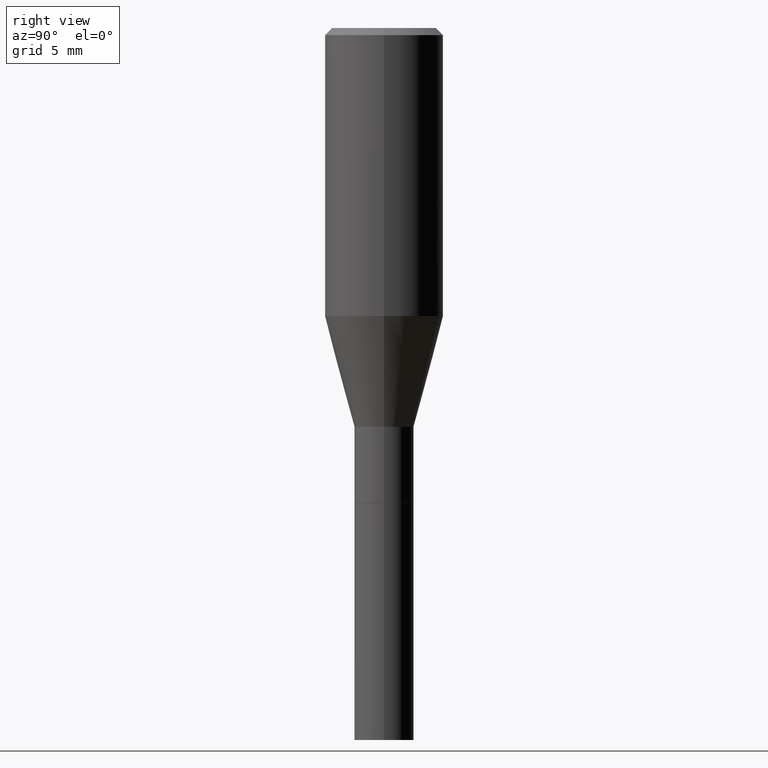
[diagram: clean part render]
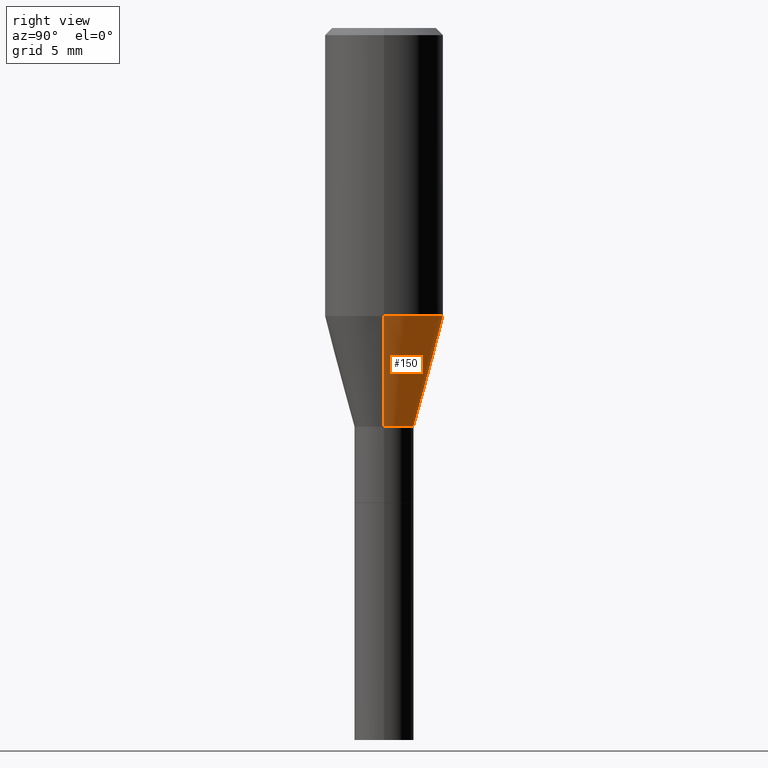
[diagram: same view with one face highlighted and labeled with its STEP entity id]
A machine part, right view. The second image highlights one B-rep face of the part: STEP entity #150.
In plain terms, the highlighted conical surface has half-angle 15 deg.
Its self-contained STEP definition (entity closure, byte-faithful):
#2 = AXIS2_PLACEMENT_3D ( 'NONE', #300, #174, #449 ) ;
#4 = ORIENTED_EDGE ( 'NONE', *, *, #387, .T. ) ;
#29 = CIRCLE ( 'NONE', #96, 0.06250000000000002776 ) ;
#31 = EDGE_LOOP ( 'NONE', ( #349, #4, #378, #148 ) ) ;
#39 = CARTESIAN_POINT ( 'NONE',  ( 1.483780432632532673E-29, -2.118445215238167770E-15, -0.6067468245269458382 ) ) ;
#82 = EDGE_CURVE ( 'NONE', #435, #285, #29, .T. ) ;
#88 = VECTOR ( 'NONE', #316, 39.37007874015748854 ) ;
#89 = VECTOR ( 'NONE', #345, 39.37007874015748854 ) ;
#96 = AXIS2_PLACEMENT_3D ( 'NONE', #194, #297, #404 ) ;
#107 = EDGE_CURVE ( 'NONE', #414, #321, #375, .T. ) ;
#138 = FACE_OUTER_BOUND ( 'NONE', #31, .T. ) ;
#148 = ORIENTED_EDGE ( 'NONE', *, *, #157, .F. ) ;
#150 = ADVANCED_FACE ( 'NONE', ( #138 ), #336, .T. ) ;
#153 = AXIS2_PLACEMENT_3D ( 'NONE', #39, #294, #189 ) ;
#157 = EDGE_CURVE ( 'NONE', #435, #414, #267, .T. ) ;
#163 = LINE ( 'NONE', #338, #89 ) ;
#174 = DIRECTION ( 'NONE',  ( -2.445468806185136597E-29, 3.491481338843145583E-15, 1.000000000000000000 ) ) ;
#189 = DIRECTION ( 'NONE',  ( 1.000000000000000000, -6.982962677686266711E-15, 0.000000000000000000 ) ) ;
#194 = CARTESIAN_POINT ( 'NONE',  ( 2.054193797195514674E-29, -2.932844324628242353E-15, -0.8400000000000000799 ) ) ;
#207 = CARTESIAN_POINT ( 'NONE',  ( 0.1250000000000000000, -2.991315549948951109E-15, -0.6067468245269458382 ) ) ;
#236 = CARTESIAN_POINT ( 'NONE',  ( -0.1250000000000000000, -1.230266795538042735E-15, -0.6067468245269458382 ) ) ;
#267 = LINE ( 'NONE', #274, #88 ) ;
#274 = CARTESIAN_POINT ( 'NONE',  ( 0.06250000000000002776, -3.369279491983634416E-15, -0.8400000000000000799 ) ) ;
#285 = VERTEX_POINT ( 'NONE', #431 ) ;
#294 = DIRECTION ( 'NONE',  ( -2.445468806185136597E-29, 3.491481338843145583E-15, 1.000000000000000000 ) ) ;
#297 = DIRECTION ( 'NONE',  ( -2.445468806185136597E-29, 3.491481338843145583E-15, 1.000000000000000000 ) ) ;
#300 = CARTESIAN_POINT ( 'NONE',  ( 2.054193797195514674E-29, -2.932844324628242353E-15, -0.8400000000000000799 ) ) ;
#316 = DIRECTION ( 'NONE',  ( 0.2588190451025211836, 1.565188264969622559E-15, 0.9659258262890679791 ) ) ;
#321 = VERTEX_POINT ( 'NONE', #236 ) ;
#336 = CONICAL_SURFACE ( 'NONE', #2, 0.06250000000000002776, 0.2617993877991499074 ) ;
#338 = CARTESIAN_POINT ( 'NONE',  ( -0.06250000000000002776, -2.488755114778179736E-15, -0.8400000000000000799 ) ) ;
#345 = DIRECTION ( 'NONE',  ( -0.2588190451025211836, 5.211531920934547886E-15, 0.9659258262890679791 ) ) ;
#349 = ORIENTED_EDGE ( 'NONE', *, *, #82, .T. ) ;
#375 = CIRCLE ( 'NONE', #153, 0.1250000000000000000 ) ;
#378 = ORIENTED_EDGE ( 'NONE', *, *, #107, .F. ) ;
#387 = EDGE_CURVE ( 'NONE', #285, #321, #163, .T. ) ;
#404 = DIRECTION ( 'NONE',  ( 1.000000000000000000, -6.982962677686267499E-15, 0.000000000000000000 ) ) ;
#414 = VERTEX_POINT ( 'NONE', #207 ) ;
#431 = CARTESIAN_POINT ( 'NONE',  ( -0.06250000000000002776, -1.859510955158110940E-15, -0.8400000000000000799 ) ) ;
#435 = VERTEX_POINT ( 'NONE', #454 ) ;
#449 = DIRECTION ( 'NONE',  ( 1.000000000000000000, -6.982962677686267499E-15, 0.000000000000000000 ) ) ;
#454 = CARTESIAN_POINT ( 'NONE',  ( 0.06250000000000002776, -3.369279491983634416E-15, -0.8400000000000000799 ) ) ;